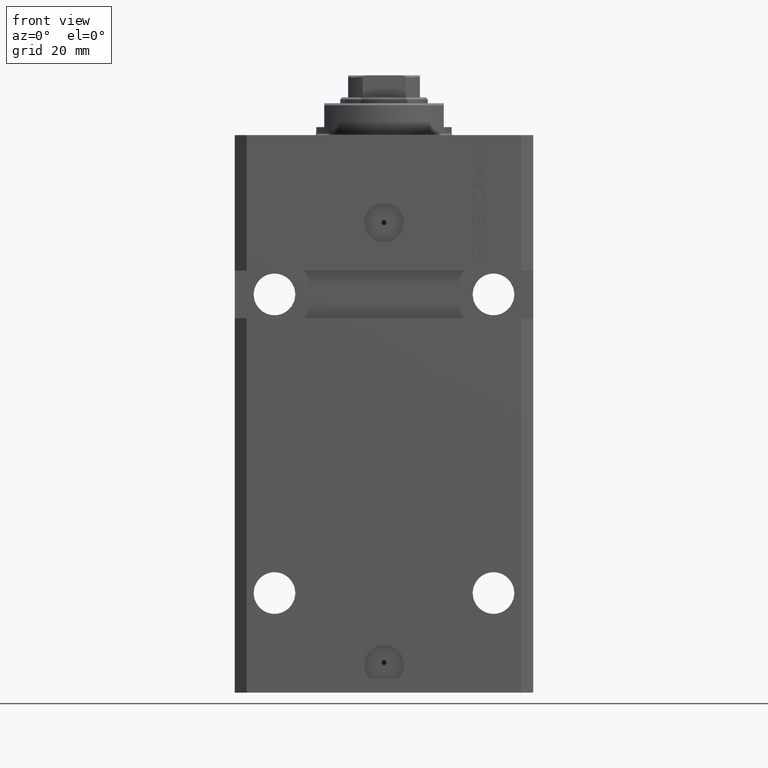
[diagram: clean part render]
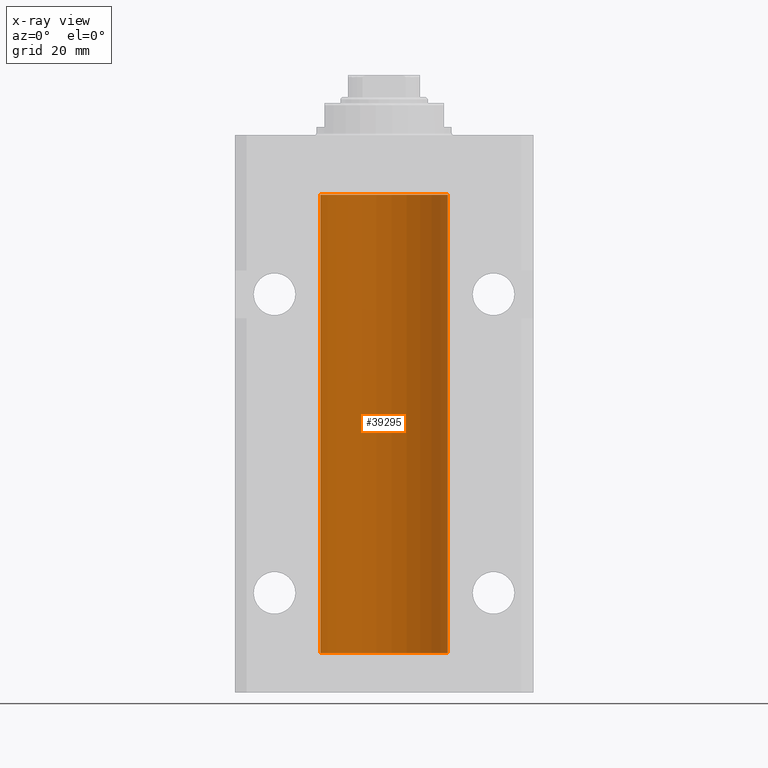
[diagram: x-ray — body ghosted, one internal face saturated and labeled with its STEP entity id]
A machine part, front view, then the same camera in x-ray: the body is ghosted and one INTERNAL B-rep face — a face not visible from any outside direction — is saturated and labeled: STEP entity #39295.
In plain terms, the highlighted cylindrical surface (partial cylindrical patch) has radius 16 mm, axis along (0, 0, 1).
Its self-contained STEP definition (entity closure, byte-faithful):
#441 = AXIS2_PLACEMENT_3D ( 'NONE', #15603, #11543, #40998 ) ;
#910 = CARTESIAN_POINT ( 'NONE',  ( -16.00000000000000000, 1.959434878635765131E-15, -15.00000000000000000 ) ) ;
#1387 = CARTESIAN_POINT ( 'NONE',  ( -16.00000000000000000, -1.314639473218082033E-14, -127.3749999999999858 ) ) ;
#1947 = DIRECTION ( 'NONE',  ( 1.000000000000000000, 0.000000000000000000, 0.000000000000000000 ) ) ;
#2013 = EDGE_CURVE ( 'NONE', #22866, #32495, #42326, .T. ) ;
#2245 = B_SPLINE_CURVE_WITH_KNOTS ( 'NONE', 3,
 ( #46559, #10390, #6806, #3205, #13995, #25007, #32428, #42494, #21432, #24771, #39388, #6570, #14232, #24061 ),
 .UNSPECIFIED., .F., .F.,
 ( 4, 2, 2, 2, 2, 2, 4 ),
 ( 1.597328219370744179E-19, 0.0002442776652680942405, 0.0004885553305361882643, 0.0009771106610723839011, 0.001221388326340481665, 0.001465665991608579430, 0.001954221322144767369 ),
 .UNSPECIFIED. ) ;
#2635 = CARTESIAN_POINT ( 'NONE',  ( -15.98779057735154296, 0.6249419637998029353, -127.8367014586350763 ) ) ;
#3111 = EDGE_CURVE ( 'NONE', #39151, #32495, #29319, .T. ) ;
#3130 = ORIENTED_EDGE ( 'NONE', *, *, #2013, .F. ) ;
#3205 = CARTESIAN_POINT ( 'NONE',  ( -15.99707730059171240, 0.3150375992092407373, -21.45402333202571654 ) ) ;
#3342 = CARTESIAN_POINT ( 'NONE',  ( -15.99070653155267685, 0.5573233280232815501, -127.6734814868050449 ) ) ;
#3691 = CARTESIAN_POINT ( 'NONE',  ( -16.00000000000000000, 1.959434878635765131E-15, -130.0999999999999943 ) ) ;
#5428 = EDGE_CURVE ( 'NONE', #39151, #39093, #37464, .T. ) ;
#5523 = EDGE_CURVE ( 'NONE', #22135, #39093, #2245, .T. ) ;
#5551 = DIRECTION ( 'NONE',  ( -0.000000000000000000, -0.000000000000000000, 1.000000000000000000 ) ) ;
#5869 = VECTOR ( 'NONE', #26960, 1000.000000000000000 ) ;
#6570 = CARTESIAN_POINT ( 'NONE',  ( -15.99711699979842017, 0.3253759916140657737, -22.55856151623175521 ) ) ;
#6698 = CARTESIAN_POINT ( 'NONE',  ( -16.00000000000013145, 3.685127464164956467E-13, -128.6250000000034390 ) ) ;
#6806 = CARTESIAN_POINT ( 'NONE',  ( -15.99934216141748244, 0.1636497843296417787, -21.39126528029306229 ) ) ;
#7405 = CARTESIAN_POINT ( 'NONE',  ( -16.00000000000000000, -1.314639473218082033E-14, -127.3749999999999858 ) ) ;
#8493 = CARTESIAN_POINT ( 'NONE',  ( -16.00000000000000000, 1.959434878635765131E-15, -130.0999999999999943 ) ) ;
#8520 = CIRCLE ( 'NONE', #41402, 16.00000000000000000 ) ;
#9131 = CYLINDRICAL_SURFACE ( 'NONE', #31490, 16.00000000000000000 ) ;
#9515 = DIRECTION ( 'NONE',  ( -0.000000000000000000, -0.000000000000000000, 1.000000000000000000 ) ) ;
#10305 = DIRECTION ( 'NONE',  ( 1.000000000000000000, 0.000000000000000000, 0.000000000000000000 ) ) ;
#10390 = CARTESIAN_POINT ( 'NONE',  ( -16.00000000000000711, 0.08259886010189904093, -21.37500000000000000 ) ) ;
#11543 = DIRECTION ( 'NONE',  ( 0.000000000000000000, 0.000000000000000000, 1.000000000000000000 ) ) ;
#12490 = FACE_OUTER_BOUND ( 'NONE', #14696, .T. ) ;
#13639 = CARTESIAN_POINT ( 'NONE',  ( -15.99070426498503217, 0.5462220647145575869, -128.3146006461414288 ) ) ;
#13995 = CARTESIAN_POINT ( 'NONE',  ( -15.99548640841683067, 0.3843705577988847377, -21.50046628527008608 ) ) ;
#14223 = VECTOR ( 'NONE', #27981, 1000.000000000000000 ) ;
#14232 = CARTESIAN_POINT ( 'NONE',  ( -16.00000000000000000, 0.1631714642025800244, -22.62499999999985789 ) ) ;
#14696 = EDGE_LOOP ( 'NONE', ( #3130, #15117, #46986, #17221, #23228, #25178, #26402, #27782 ) ) ;
#15117 = ORIENTED_EDGE ( 'NONE', *, *, #20478, .F. ) ;
#15603 = CARTESIAN_POINT ( 'NONE',  ( 0.000000000000000000, 0.000000000000000000, -130.0999999999999943 ) ) ;
#16480 = CARTESIAN_POINT ( 'NONE',  ( 16.00000000000000000, 0.000000000000000000, -130.0999999999999943 ) ) ;
#16503 = VERTEX_POINT ( 'NONE', #32145 ) ;
#17221 = ORIENTED_EDGE ( 'NONE', *, *, #38309, .T. ) ;
#17459 = LINE ( 'NONE', #20815, #14223 ) ;
#17502 = DIRECTION ( 'NONE',  ( 0.000000000000000000, 0.000000000000000000, 1.000000000000000000 ) ) ;
#17967 = CARTESIAN_POINT ( 'NONE',  ( -15.98844267028591482, 0.6088369347963276113, -128.1632473502432674 ) ) ;
#20021 = LINE ( 'NONE', #26719, #5869 ) ;
#20478 = EDGE_CURVE ( 'NONE', #46498, #22866, #34824, .T. ) ;
#20815 = CARTESIAN_POINT ( 'NONE',  ( -16.00000000000000000, 1.959434878635765131E-15, -130.0999999999999943 ) ) ;
#21127 = EDGE_CURVE ( 'NONE', #22135, #22392, #17459, .T. ) ;
#21323 = CARTESIAN_POINT ( 'NONE',  ( -15.99707730059171240, 0.3150375992092247501, -127.4540233320256561 ) ) ;
#21432 = CARTESIAN_POINT ( 'NONE',  ( -15.98844267028591482, 0.6088369347963316081, -22.16324735024328518 ) ) ;
#22027 = CARTESIAN_POINT ( 'NONE',  ( -16.00000000000000355, 0.08259886010188438599, -127.3749999999999574 ) ) ;
#22135 = VERTEX_POINT ( 'NONE', #39234 ) ;
#22392 = VERTEX_POINT ( 'NONE', #910 ) ;
#22866 = VERTEX_POINT ( 'NONE', #3691 ) ;
#23228 = ORIENTED_EDGE ( 'NONE', *, *, #21127, .F. ) ;
#23515 = CARTESIAN_POINT ( 'NONE',  ( 0.000000000000000000, 0.000000000000000000, -130.0999999999999943 ) ) ;
#23697 = EDGE_CURVE ( 'NONE', #46498, #16503, #20021, .T. ) ;
#24061 = CARTESIAN_POINT ( 'NONE',  ( -16.00000000000013145, 3.685127038166941002E-13, -22.62500000000341771 ) ) ;
#24771 = CARTESIAN_POINT ( 'NONE',  ( -15.99070426498503217, 0.5462220647145618058, -22.31460064614143590 ) ) ;
#25007 = CARTESIAN_POINT ( 'NONE',  ( -15.99070653155267685, 0.5573233280232986475, -21.67348148680506625 ) ) ;
#25178 = ORIENTED_EDGE ( 'NONE', *, *, #5523, .T. ) ;
#26402 = ORIENTED_EDGE ( 'NONE', *, *, #5428, .F. ) ;
#26719 = CARTESIAN_POINT ( 'NONE',  ( 16.00000000000000000, 0.000000000000000000, -130.0999999999999943 ) ) ;
#26960 = DIRECTION ( 'NONE',  ( -0.000000000000000000, -0.000000000000000000, 1.000000000000000000 ) ) ;
#27171 = DIRECTION ( 'NONE',  ( -0.000000000000000000, -0.000000000000000000, 1.000000000000000000 ) ) ;
#27347 = VECTOR ( 'NONE', #9515, 1000.000000000000000 ) ;
#27782 = ORIENTED_EDGE ( 'NONE', *, *, #3111, .T. ) ;
#27981 = DIRECTION ( 'NONE',  ( -0.000000000000000000, -0.000000000000000000, 1.000000000000000000 ) ) ;
#28744 = CARTESIAN_POINT ( 'NONE',  ( 0.000000000000000000, 0.000000000000000000, -15.00000000000000000 ) ) ;
#28962 = CARTESIAN_POINT ( 'NONE',  ( -15.99228023727723702, 0.5003781296993445871, -128.3834782955424032 ) ) ;
#29319 = B_SPLINE_CURVE_WITH_KNOTS ( 'NONE', 3,
 ( #7405, #22027, #43104, #21323, #39522, #3342, #2635, #43808, #17967, #13639, #28962, #39988, #35915, #6698 ),
 .UNSPECIFIED., .F., .F.,
 ( 4, 2, 2, 2, 2, 2, 4 ),
 ( 2.457764170500729066E-18, 0.0002442776652680811759, 0.0004885553305361599666, 0.0009771106610723173311, 0.001221388326340437647, 0.001465665991608557962, 0.001954221322144799027 ),
 .UNSPECIFIED. ) ;
#31406 = VECTOR ( 'NONE', #27171, 1000.000000000000000 ) ;
#31490 = AXIS2_PLACEMENT_3D ( 'NONE', #23515, #5551, #1947 ) ;
#32145 = CARTESIAN_POINT ( 'NONE',  ( 16.00000000000000000, 0.000000000000000000, -15.00000000000000000 ) ) ;
#32428 = CARTESIAN_POINT ( 'NONE',  ( -15.98779057735153941, 0.6249419637998100407, -21.83670145863507273 ) ) ;
#32495 = VERTEX_POINT ( 'NONE', #46101 ) ;
#34824 = CIRCLE ( 'NONE', #441, 16.00000000000000000 ) ;
#35915 = CARTESIAN_POINT ( 'NONE',  ( -15.99999999999999289, 0.1631714642025817730, -128.6249999999999147 ) ) ;
#37464 = LINE ( 'NONE', #8493, #31406 ) ;
#38309 = EDGE_CURVE ( 'NONE', #16503, #22392, #8520, .T. ) ;
#38592 = CARTESIAN_POINT ( 'NONE',  ( -16.00000000000013145, 3.685127038166941002E-13, -22.62500000000341771 ) ) ;
#39093 = VERTEX_POINT ( 'NONE', #38592 ) ;
#39151 = VERTEX_POINT ( 'NONE', #1387 ) ;
#39234 = CARTESIAN_POINT ( 'NONE',  ( -16.00000000000000000, 1.643679961284177128E-16, -21.37499999999999645 ) ) ;
#39295 = ADVANCED_FACE ( 'NONE', ( #12490 ), #9131, .F. ) ;
#39388 = CARTESIAN_POINT ( 'NONE',  ( -15.99228023727724413, 0.5003781296993413674, -22.38347829554236057 ) ) ;
#39522 = CARTESIAN_POINT ( 'NONE',  ( -15.99548640841682712, 0.3843705577988635880, -127.5004662852700932 ) ) ;
#39988 = CARTESIAN_POINT ( 'NONE',  ( -15.99711699979841661, 0.3253759916140733233, -128.5585615162317765 ) ) ;
#40998 = DIRECTION ( 'NONE',  ( 1.000000000000000000, 0.000000000000000000, 0.000000000000000000 ) ) ;
#41402 = AXIS2_PLACEMENT_3D ( 'NONE', #28744, #17502, #10305 ) ;
#42086 = CARTESIAN_POINT ( 'NONE',  ( -16.00000000000000000, 1.959434878635765131E-15, -130.0999999999999943 ) ) ;
#42326 = LINE ( 'NONE', #42086, #27347 ) ;
#42494 = CARTESIAN_POINT ( 'NONE',  ( -15.98778717651346071, 0.6250289588122140971, -22.08131585687052478 ) ) ;
#43104 = CARTESIAN_POINT ( 'NONE',  ( -15.99934216141748244, 0.1636497843296232380, -127.3912652802930694 ) ) ;
#43808 = CARTESIAN_POINT ( 'NONE',  ( -15.98778717651346604, 0.6250289588122058815, -128.0813158568705603 ) ) ;
#46101 = CARTESIAN_POINT ( 'NONE',  ( -16.00000000000013145, 3.685127464164956467E-13, -128.6250000000034390 ) ) ;
#46498 = VERTEX_POINT ( 'NONE', #16480 ) ;
#46559 = CARTESIAN_POINT ( 'NONE',  ( -16.00000000000000000, 1.643679961284177128E-16, -21.37499999999999645 ) ) ;
#46986 = ORIENTED_EDGE ( 'NONE', *, *, #23697, .T. ) ;